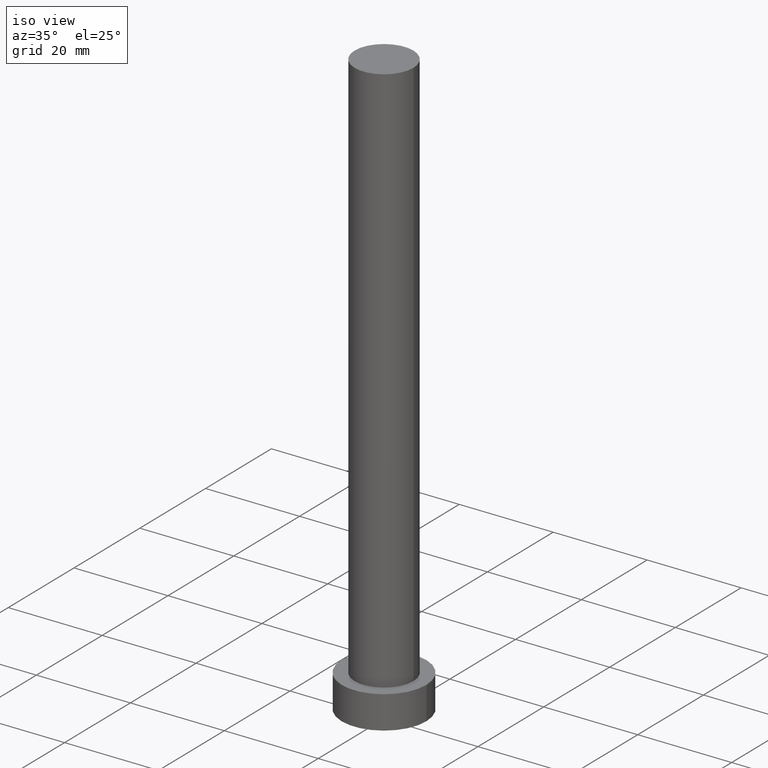
[diagram: clean part render]
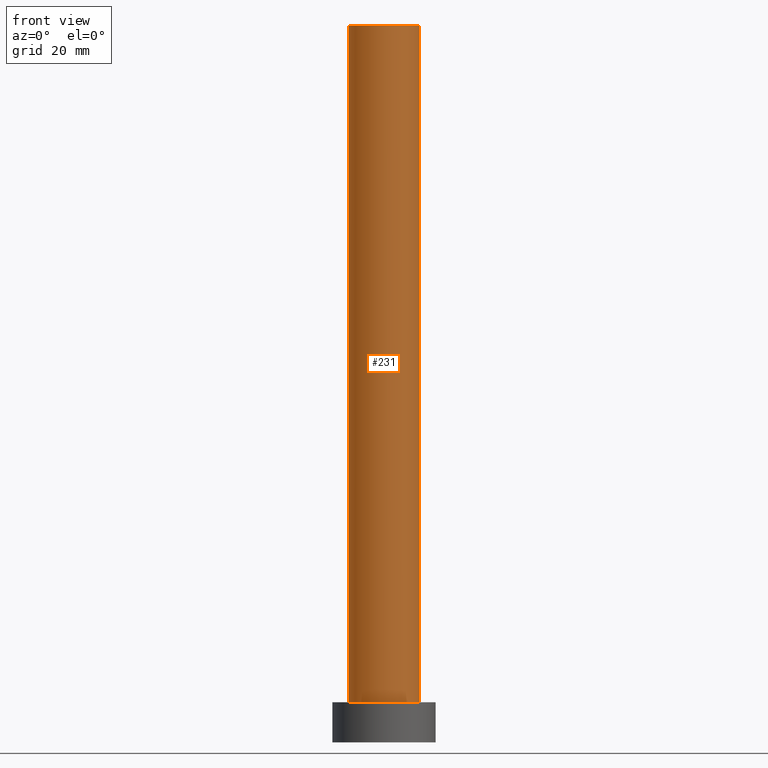
[diagram: tour spotlight — one face highlighted and labeled with its STEP entity id]
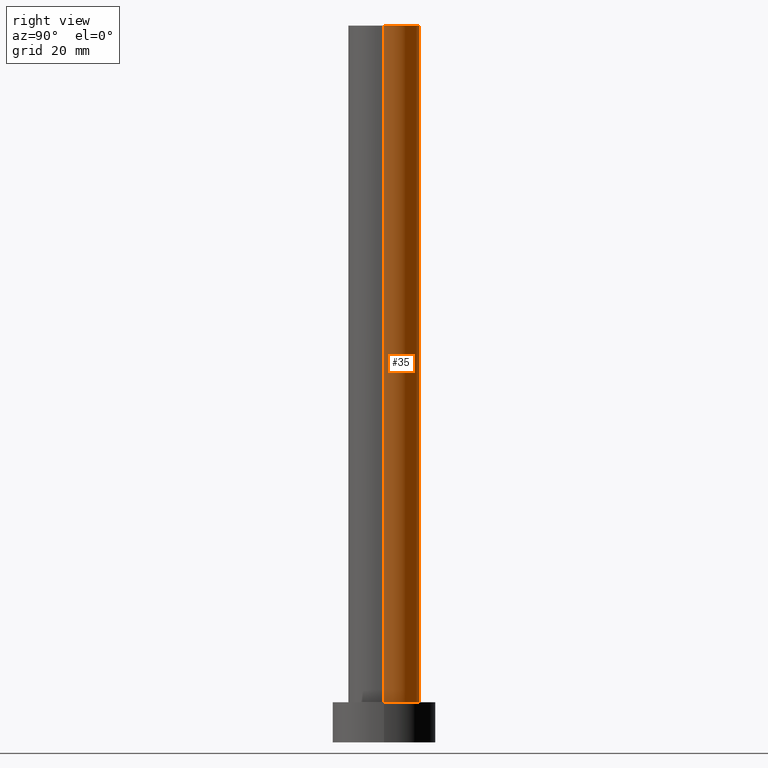
[diagram: tour spotlight — one face highlighted and labeled with its STEP entity id]
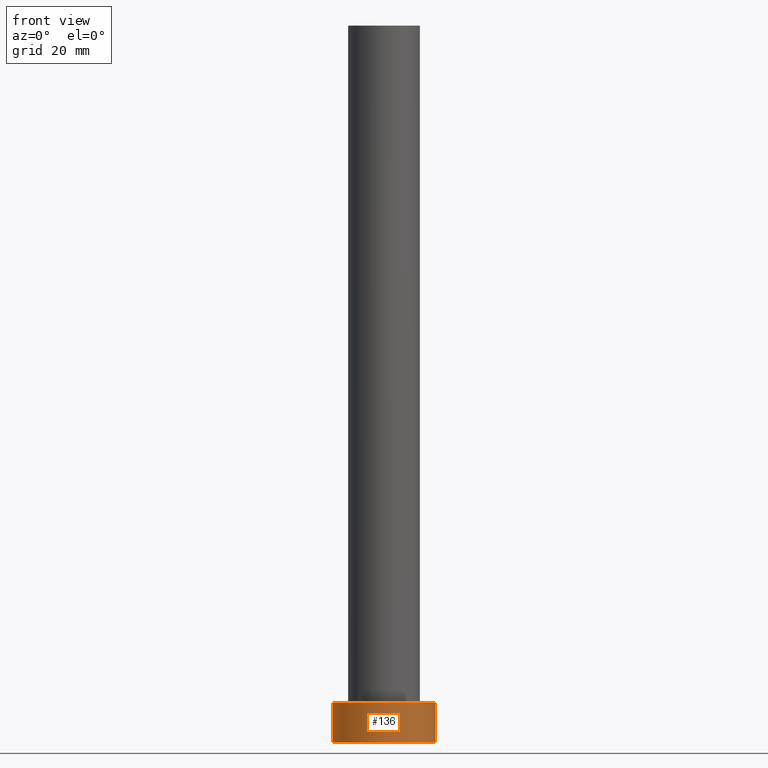
[diagram: tour spotlight — one face highlighted and labeled with its STEP entity id]
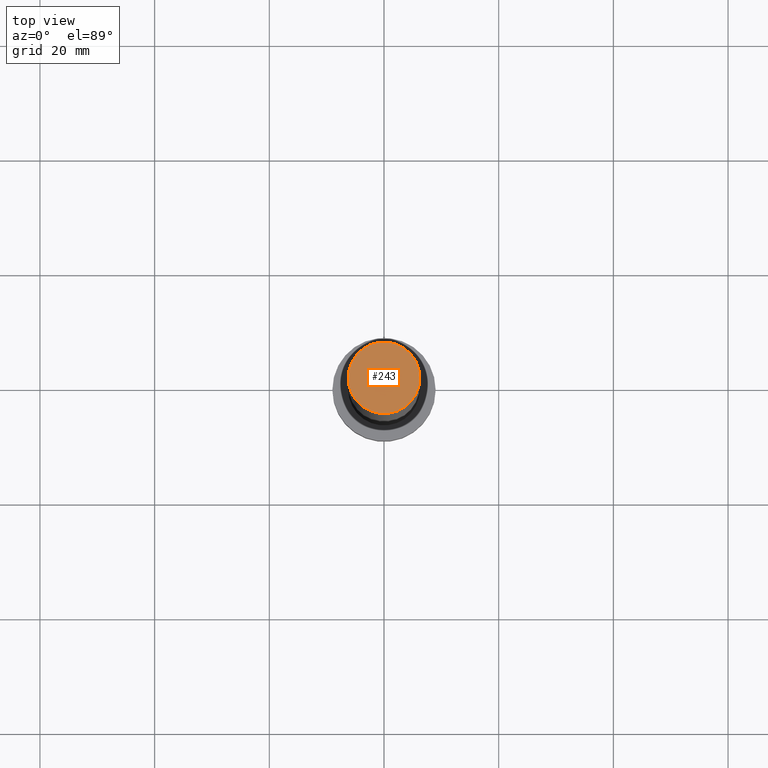
[diagram: tour spotlight — one face highlighted and labeled with its STEP entity id]
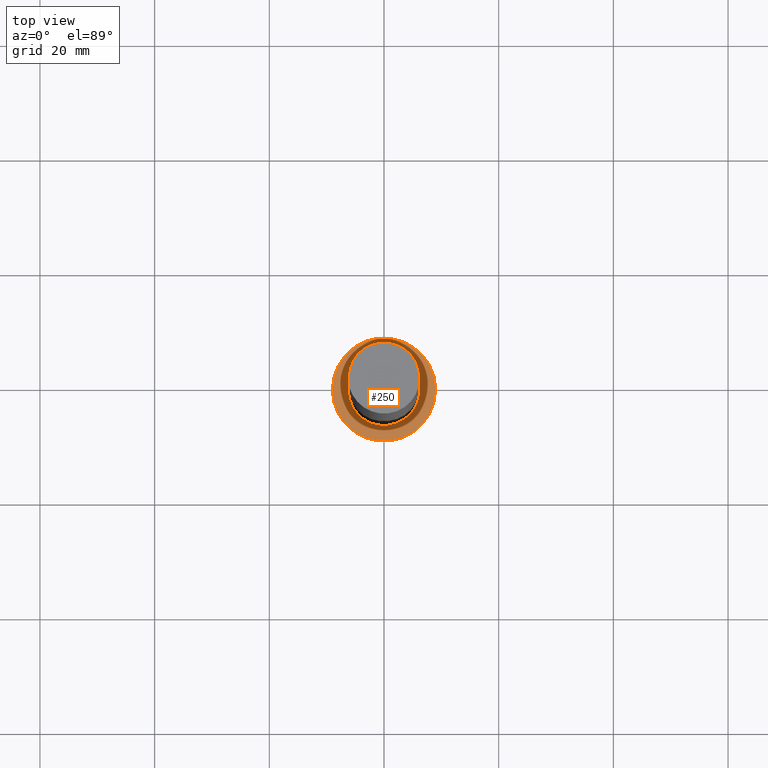
[diagram: tour spotlight — one face highlighted and labeled with its STEP entity id]
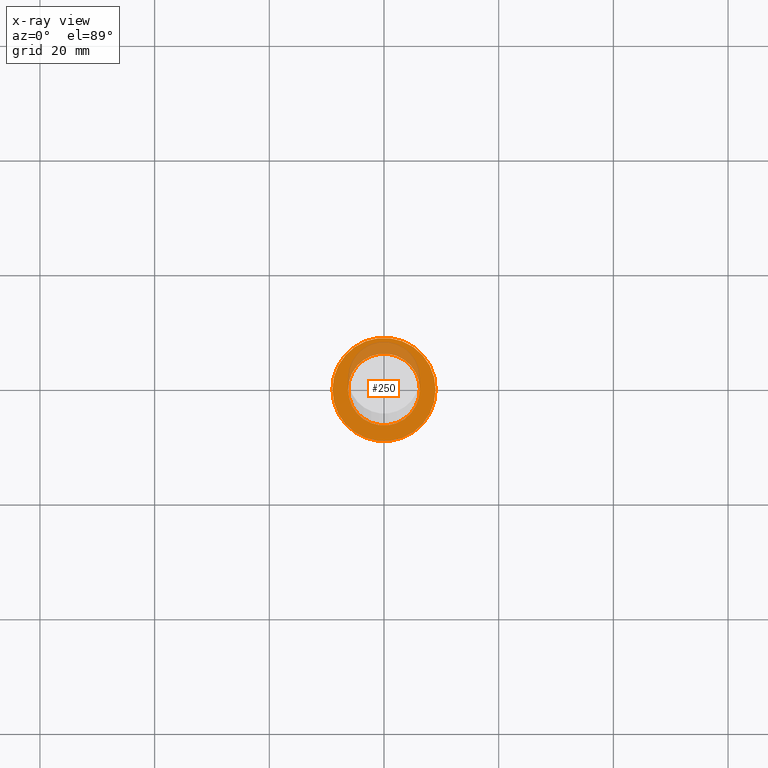
[diagram: x-ray of the same camera — body ghosted, this tour face saturated]
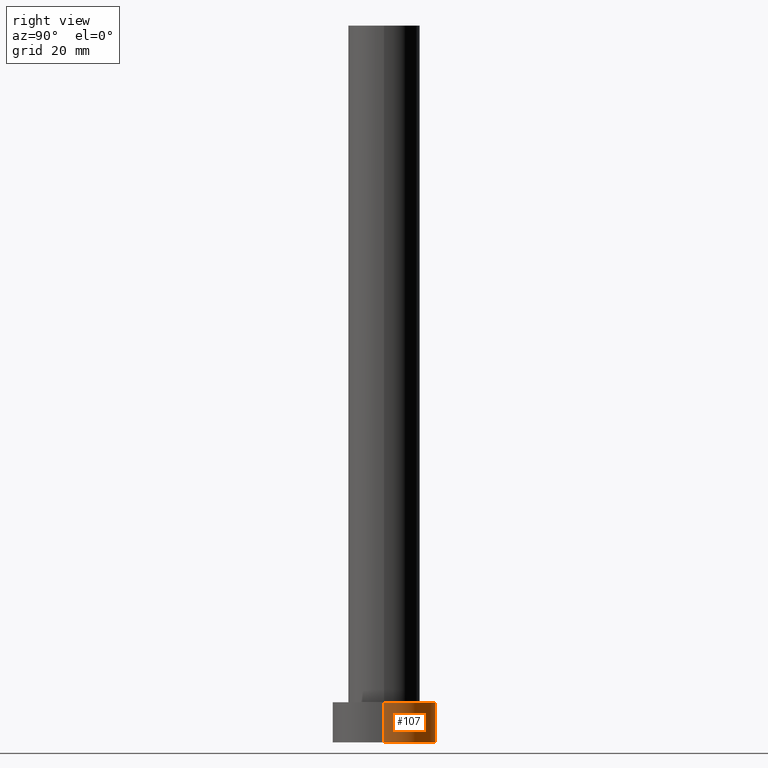
[diagram: tour spotlight — one face highlighted and labeled with its STEP entity id]
A machine part: a face-by-face anatomy tour. The part has 7 B-rep faces; the first image is the clean iso view, then the 6 largest visible faces are spotlighted one at a time (largest first), each with its STEP entity span.

Face 1 — front view, entity #231. In plain terms, the highlighted cylindrical surface (edge-blend (fillet) strip) has radius 6.25 mm, axis along (-0, -0, -1).
Definition (entity closure, byte-faithful):
#2 = CYLINDRICAL_SURFACE ( 'NONE', #68, 6.250000000000000000 ) ;
#3 = DIRECTION ( 'NONE',  ( -0.000000000000000000, -0.000000000000000000, -1.000000000000000000 ) ) ;
#7 = VERTEX_POINT ( 'NONE', #169 ) ;
#23 = VERTEX_POINT ( 'NONE', #27 ) ;
#27 = CARTESIAN_POINT ( 'NONE',  ( -6.250000000000000000, 0.000000000000000000, 7.000000000000000000 ) ) ;
#32 = LINE ( 'NONE', #189, #50 ) ;
#36 = DIRECTION ( 'NONE',  ( -1.000000000000000000, 0.000000000000000000, 0.000000000000000000 ) ) ;
#42 = EDGE_CURVE ( 'NONE', #7, #122, #32, .T. ) ;
#49 = AXIS2_PLACEMENT_3D ( 'NONE', #251, #190, #148 ) ;
#50 = VECTOR ( 'NONE', #89, 1000.000000000000000 ) ;
#52 = EDGE_CURVE ( 'NONE', #147, #7, #139, .T. ) ;
#54 = CARTESIAN_POINT ( 'NONE',  ( -6.250000000000000000, 0.000000000000000000, 125.0000000000000000 ) ) ;
#68 = AXIS2_PLACEMENT_3D ( 'NONE', #79, #3, #36 ) ;
#79 = CARTESIAN_POINT ( 'NONE',  ( 0.000000000000000000, 0.000000000000000000, 125.0000000000000000 ) ) ;
#82 = ORIENTED_EDGE ( 'NONE', *, *, #52, .F. ) ;
#87 = AXIS2_PLACEMENT_3D ( 'NONE', #191, #90, #236 ) ;
#89 = DIRECTION ( 'NONE',  ( -0.000000000000000000, -0.000000000000000000, -1.000000000000000000 ) ) ;
#90 = DIRECTION ( 'NONE',  ( 0.000000000000000000, 0.000000000000000000, 1.000000000000000000 ) ) ;
#94 = CIRCLE ( 'NONE', #49, 6.250000000000000000 ) ;
#109 = CARTESIAN_POINT ( 'NONE',  ( -6.250000000000000000, 0.000000000000000000, 125.0000000000000000 ) ) ;
#122 = VERTEX_POINT ( 'NONE', #152 ) ;
#123 = EDGE_CURVE ( 'NONE', #23, #122, #94, .T. ) ;
#134 = FACE_OUTER_BOUND ( 'NONE', #205, .T. ) ;
#139 = CIRCLE ( 'NONE', #87, 6.250000000000000000 ) ;
#147 = VERTEX_POINT ( 'NONE', #109 ) ;
#148 = DIRECTION ( 'NONE',  ( 1.000000000000000000, 0.000000000000000000, 0.000000000000000000 ) ) ;
#152 = CARTESIAN_POINT ( 'NONE',  ( 6.250000000000000000, 7.654042494670957606E-16, 7.000000000000000000 ) ) ;
#155 = EDGE_CURVE ( 'NONE', #147, #23, #216, .T. ) ;
#165 = ORIENTED_EDGE ( 'NONE', *, *, #123, .T. ) ;
#169 = CARTESIAN_POINT ( 'NONE',  ( 6.250000000000000000, 7.654042494670957606E-16, 125.0000000000000000 ) ) ;
#189 = CARTESIAN_POINT ( 'NONE',  ( 6.250000000000000000, 7.654042494670957606E-16, 125.0000000000000000 ) ) ;
#190 = DIRECTION ( 'NONE',  ( 0.000000000000000000, 0.000000000000000000, 1.000000000000000000 ) ) ;
#191 = CARTESIAN_POINT ( 'NONE',  ( 0.000000000000000000, 0.000000000000000000, 125.0000000000000000 ) ) ;
#193 = ORIENTED_EDGE ( 'NONE', *, *, #155, .T. ) ;
#194 = VECTOR ( 'NONE', #235, 1000.000000000000000 ) ;
#205 = EDGE_LOOP ( 'NONE', ( #245, #82, #193, #165 ) ) ;
#216 = LINE ( 'NONE', #54, #194 ) ;
#231 = ADVANCED_FACE ( 'NONE', ( #134 ), #2, .T. ) ;
#235 = DIRECTION ( 'NONE',  ( -0.000000000000000000, -0.000000000000000000, -1.000000000000000000 ) ) ;
#236 = DIRECTION ( 'NONE',  ( 1.000000000000000000, 0.000000000000000000, 0.000000000000000000 ) ) ;
#245 = ORIENTED_EDGE ( 'NONE', *, *, #42, .F. ) ;
#251 = CARTESIAN_POINT ( 'NONE',  ( 0.000000000000000000, 0.000000000000000000, 7.000000000000000000 ) ) ;

Face 2 — right view, entity #35. In plain terms, the highlighted cylindrical surface (edge-blend (fillet) strip) has radius 6.25 mm, axis along (-0, -0, -1).
Definition (entity closure, byte-faithful):
#4 = ORIENTED_EDGE ( 'NONE', *, *, #132, .F. ) ;
#7 = VERTEX_POINT ( 'NONE', #169 ) ;
#9 = ORIENTED_EDGE ( 'NONE', *, *, #155, .F. ) ;
#14 = CIRCLE ( 'NONE', #24, 6.250000000000000000 ) ;
#23 = VERTEX_POINT ( 'NONE', #27 ) ;
#24 = AXIS2_PLACEMENT_3D ( 'NONE', #110, #92, #74 ) ;
#27 = CARTESIAN_POINT ( 'NONE',  ( -6.250000000000000000, 0.000000000000000000, 7.000000000000000000 ) ) ;
#32 = LINE ( 'NONE', #189, #50 ) ;
#35 = ADVANCED_FACE ( 'NONE', ( #105 ), #149, .T. ) ;
#38 = AXIS2_PLACEMENT_3D ( 'NONE', #171, #249, #215 ) ;
#42 = EDGE_CURVE ( 'NONE', #7, #122, #32, .T. ) ;
#50 = VECTOR ( 'NONE', #89, 1000.000000000000000 ) ;
#54 = CARTESIAN_POINT ( 'NONE',  ( -6.250000000000000000, 0.000000000000000000, 125.0000000000000000 ) ) ;
#74 = DIRECTION ( 'NONE',  ( 1.000000000000000000, 0.000000000000000000, 0.000000000000000000 ) ) ;
#89 = DIRECTION ( 'NONE',  ( -0.000000000000000000, -0.000000000000000000, -1.000000000000000000 ) ) ;
#92 = DIRECTION ( 'NONE',  ( 0.000000000000000000, 0.000000000000000000, 1.000000000000000000 ) ) ;
#99 = EDGE_LOOP ( 'NONE', ( #4, #124, #146, #9 ) ) ;
#105 = FACE_OUTER_BOUND ( 'NONE', #99, .T. ) ;
#109 = CARTESIAN_POINT ( 'NONE',  ( -6.250000000000000000, 0.000000000000000000, 125.0000000000000000 ) ) ;
#110 = CARTESIAN_POINT ( 'NONE',  ( 0.000000000000000000, 0.000000000000000000, 125.0000000000000000 ) ) ;
#122 = VERTEX_POINT ( 'NONE', #152 ) ;
#124 = ORIENTED_EDGE ( 'NONE', *, *, #42, .T. ) ;
#130 = DIRECTION ( 'NONE',  ( 1.000000000000000000, 0.000000000000000000, 0.000000000000000000 ) ) ;
#132 = EDGE_CURVE ( 'NONE', #7, #147, #14, .T. ) ;
#146 = ORIENTED_EDGE ( 'NONE', *, *, #151, .T. ) ;
#147 = VERTEX_POINT ( 'NONE', #109 ) ;
#149 = CYLINDRICAL_SURFACE ( 'NONE', #38, 6.250000000000000000 ) ;
#151 = EDGE_CURVE ( 'NONE', #122, #23, #246, .T. ) ;
#152 = CARTESIAN_POINT ( 'NONE',  ( 6.250000000000000000, 7.654042494670957606E-16, 7.000000000000000000 ) ) ;
#155 = EDGE_CURVE ( 'NONE', #147, #23, #216, .T. ) ;
#169 = CARTESIAN_POINT ( 'NONE',  ( 6.250000000000000000, 7.654042494670957606E-16, 125.0000000000000000 ) ) ;
#171 = CARTESIAN_POINT ( 'NONE',  ( 0.000000000000000000, 0.000000000000000000, 125.0000000000000000 ) ) ;
#172 = AXIS2_PLACEMENT_3D ( 'NONE', #252, #232, #130 ) ;
#189 = CARTESIAN_POINT ( 'NONE',  ( 6.250000000000000000, 7.654042494670957606E-16, 125.0000000000000000 ) ) ;
#194 = VECTOR ( 'NONE', #235, 1000.000000000000000 ) ;
#215 = DIRECTION ( 'NONE',  ( -1.000000000000000000, 0.000000000000000000, 0.000000000000000000 ) ) ;
#216 = LINE ( 'NONE', #54, #194 ) ;
#232 = DIRECTION ( 'NONE',  ( 0.000000000000000000, 0.000000000000000000, 1.000000000000000000 ) ) ;
#235 = DIRECTION ( 'NONE',  ( -0.000000000000000000, -0.000000000000000000, -1.000000000000000000 ) ) ;
#246 = CIRCLE ( 'NONE', #172, 6.250000000000000000 ) ;
#249 = DIRECTION ( 'NONE',  ( -0.000000000000000000, -0.000000000000000000, -1.000000000000000000 ) ) ;
#252 = CARTESIAN_POINT ( 'NONE',  ( 0.000000000000000000, 0.000000000000000000, 7.000000000000000000 ) ) ;

Face 3 — front view, entity #136. In plain terms, the highlighted cylindrical surface (partial cylindrical patch) has radius 9 mm, axis along (-0, -0, -1).
Definition (entity closure, byte-faithful):
#5 = EDGE_LOOP ( 'NONE', ( #204, #188, #47, #203 ) ) ;
#12 = FACE_OUTER_BOUND ( 'NONE', #5, .T. ) ;
#28 = AXIS2_PLACEMENT_3D ( 'NONE', #173, #254, #234 ) ;
#29 = CARTESIAN_POINT ( 'NONE',  ( 9.000000000000000000, 1.102182119232617714E-15, 7.000000000000000000 ) ) ;
#30 = DIRECTION ( 'NONE',  ( -0.000000000000000000, -0.000000000000000000, -1.000000000000000000 ) ) ;
#46 = VERTEX_POINT ( 'NONE', #73 ) ;
#47 = ORIENTED_EDGE ( 'NONE', *, *, #202, .T. ) ;
#48 = DIRECTION ( 'NONE',  ( -0.000000000000000000, -0.000000000000000000, -1.000000000000000000 ) ) ;
#51 = DIRECTION ( 'NONE',  ( 1.000000000000000000, 0.000000000000000000, 0.000000000000000000 ) ) ;
#53 = LINE ( 'NONE', #75, #125 ) ;
#62 = EDGE_CURVE ( 'NONE', #184, #163, #206, .T. ) ;
#71 = CARTESIAN_POINT ( 'NONE',  ( 9.000000000000000000, 1.102182119232617714E-15, 0.000000000000000000 ) ) ;
#72 = CIRCLE ( 'NONE', #200, 9.000000000000000000 ) ;
#73 = CARTESIAN_POINT ( 'NONE',  ( 9.000000000000000000, 1.102182119232617714E-15, 7.000000000000000000 ) ) ;
#75 = CARTESIAN_POINT ( 'NONE',  ( -9.000000000000000000, 0.000000000000000000, 7.000000000000000000 ) ) ;
#98 = EDGE_CURVE ( 'NONE', #46, #163, #230, .T. ) ;
#108 = DIRECTION ( 'NONE',  ( -1.000000000000000000, 0.000000000000000000, 0.000000000000000000 ) ) ;
#115 = DIRECTION ( 'NONE',  ( 0.000000000000000000, 0.000000000000000000, 1.000000000000000000 ) ) ;
#125 = VECTOR ( 'NONE', #30, 1000.000000000000000 ) ;
#131 = CARTESIAN_POINT ( 'NONE',  ( 0.000000000000000000, 0.000000000000000000, 7.000000000000000000 ) ) ;
#136 = ADVANCED_FACE ( 'NONE', ( #12 ), #153, .T. ) ;
#153 = CYLINDRICAL_SURFACE ( 'NONE', #180, 9.000000000000000000 ) ;
#163 = VERTEX_POINT ( 'NONE', #71 ) ;
#173 = CARTESIAN_POINT ( 'NONE',  ( 0.000000000000000000, 0.000000000000000000, 0.000000000000000000 ) ) ;
#180 = AXIS2_PLACEMENT_3D ( 'NONE', #210, #48, #108 ) ;
#183 = EDGE_CURVE ( 'NONE', #247, #46, #72, .T. ) ;
#184 = VERTEX_POINT ( 'NONE', #196 ) ;
#188 = ORIENTED_EDGE ( 'NONE', *, *, #183, .F. ) ;
#196 = CARTESIAN_POINT ( 'NONE',  ( -9.000000000000000000, 0.000000000000000000, 0.000000000000000000 ) ) ;
#200 = AXIS2_PLACEMENT_3D ( 'NONE', #131, #115, #51 ) ;
#202 = EDGE_CURVE ( 'NONE', #247, #184, #53, .T. ) ;
#203 = ORIENTED_EDGE ( 'NONE', *, *, #62, .T. ) ;
#204 = ORIENTED_EDGE ( 'NONE', *, *, #98, .F. ) ;
#206 = CIRCLE ( 'NONE', #28, 9.000000000000000000 ) ;
#210 = CARTESIAN_POINT ( 'NONE',  ( 0.000000000000000000, 0.000000000000000000, 7.000000000000000000 ) ) ;
#214 = DIRECTION ( 'NONE',  ( -0.000000000000000000, -0.000000000000000000, -1.000000000000000000 ) ) ;
#217 = CARTESIAN_POINT ( 'NONE',  ( -9.000000000000000000, 0.000000000000000000, 7.000000000000000000 ) ) ;
#220 = VECTOR ( 'NONE', #214, 1000.000000000000000 ) ;
#230 = LINE ( 'NONE', #29, #220 ) ;
#234 = DIRECTION ( 'NONE',  ( 1.000000000000000000, 0.000000000000000000, 0.000000000000000000 ) ) ;
#247 = VERTEX_POINT ( 'NONE', #217 ) ;
#254 = DIRECTION ( 'NONE',  ( 0.000000000000000000, 0.000000000000000000, 1.000000000000000000 ) ) ;

Face 4 — top view, entity #243. In plain terms, the highlighted planar face has unit normal (0, 0, 1).
Definition (entity closure, byte-faithful):
#7 = VERTEX_POINT ( 'NONE', #169 ) ;
#14 = CIRCLE ( 'NONE', #24, 6.250000000000000000 ) ;
#24 = AXIS2_PLACEMENT_3D ( 'NONE', #110, #92, #74 ) ;
#41 = AXIS2_PLACEMENT_3D ( 'NONE', #199, #140, #80 ) ;
#52 = EDGE_CURVE ( 'NONE', #147, #7, #139, .T. ) ;
#74 = DIRECTION ( 'NONE',  ( 1.000000000000000000, 0.000000000000000000, 0.000000000000000000 ) ) ;
#80 = DIRECTION ( 'NONE',  ( 1.000000000000000000, 0.000000000000000000, -0.000000000000000000 ) ) ;
#84 = ORIENTED_EDGE ( 'NONE', *, *, #132, .T. ) ;
#86 = EDGE_LOOP ( 'NONE', ( #121, #84 ) ) ;
#87 = AXIS2_PLACEMENT_3D ( 'NONE', #191, #90, #236 ) ;
#90 = DIRECTION ( 'NONE',  ( 0.000000000000000000, 0.000000000000000000, 1.000000000000000000 ) ) ;
#92 = DIRECTION ( 'NONE',  ( 0.000000000000000000, 0.000000000000000000, 1.000000000000000000 ) ) ;
#109 = CARTESIAN_POINT ( 'NONE',  ( -6.250000000000000000, 0.000000000000000000, 125.0000000000000000 ) ) ;
#110 = CARTESIAN_POINT ( 'NONE',  ( 0.000000000000000000, 0.000000000000000000, 125.0000000000000000 ) ) ;
#121 = ORIENTED_EDGE ( 'NONE', *, *, #52, .T. ) ;
#132 = EDGE_CURVE ( 'NONE', #7, #147, #14, .T. ) ;
#139 = CIRCLE ( 'NONE', #87, 6.250000000000000000 ) ;
#140 = DIRECTION ( 'NONE',  ( 0.000000000000000000, 0.000000000000000000, 1.000000000000000000 ) ) ;
#147 = VERTEX_POINT ( 'NONE', #109 ) ;
#169 = CARTESIAN_POINT ( 'NONE',  ( 6.250000000000000000, 7.654042494670957606E-16, 125.0000000000000000 ) ) ;
#179 = PLANE ( 'NONE',  #41 ) ;
#191 = CARTESIAN_POINT ( 'NONE',  ( 0.000000000000000000, 0.000000000000000000, 125.0000000000000000 ) ) ;
#197 = FACE_OUTER_BOUND ( 'NONE', #86, .T. ) ;
#199 = CARTESIAN_POINT ( 'NONE',  ( 0.000000000000000000, 0.000000000000000000, 125.0000000000000000 ) ) ;
#236 = DIRECTION ( 'NONE',  ( 1.000000000000000000, 0.000000000000000000, 0.000000000000000000 ) ) ;
#243 = ADVANCED_FACE ( 'NONE', ( #197 ), #179, .T. ) ;

Face 5 — top view, entity #250. An x-ray twin of the same camera follows (body ghosted, this face saturated) — the face is partly hidden behind the body. In plain terms, the highlighted planar face has unit normal (0, 0, 1).
Definition (entity closure, byte-faithful):
#13 = DIRECTION ( 'NONE',  ( 1.000000000000000000, 0.000000000000000000, 0.000000000000000000 ) ) ;
#21 = PLANE ( 'NONE',  #133 ) ;
#23 = VERTEX_POINT ( 'NONE', #27 ) ;
#26 = EDGE_LOOP ( 'NONE', ( #145, #44 ) ) ;
#27 = CARTESIAN_POINT ( 'NONE',  ( -6.250000000000000000, 0.000000000000000000, 7.000000000000000000 ) ) ;
#34 = FACE_BOUND ( 'NONE', #225, .T. ) ;
#44 = ORIENTED_EDGE ( 'NONE', *, *, #111, .T. ) ;
#46 = VERTEX_POINT ( 'NONE', #73 ) ;
#49 = AXIS2_PLACEMENT_3D ( 'NONE', #251, #190, #148 ) ;
#51 = DIRECTION ( 'NONE',  ( 1.000000000000000000, 0.000000000000000000, 0.000000000000000000 ) ) ;
#60 = FACE_OUTER_BOUND ( 'NONE', #26, .T. ) ;
#63 = AXIS2_PLACEMENT_3D ( 'NONE', #127, #174, #13 ) ;
#72 = CIRCLE ( 'NONE', #200, 9.000000000000000000 ) ;
#73 = CARTESIAN_POINT ( 'NONE',  ( 9.000000000000000000, 1.102182119232617714E-15, 7.000000000000000000 ) ) ;
#91 = CIRCLE ( 'NONE', #63, 9.000000000000000000 ) ;
#94 = CIRCLE ( 'NONE', #49, 6.250000000000000000 ) ;
#102 = ORIENTED_EDGE ( 'NONE', *, *, #151, .F. ) ;
#111 = EDGE_CURVE ( 'NONE', #46, #247, #91, .T. ) ;
#115 = DIRECTION ( 'NONE',  ( 0.000000000000000000, 0.000000000000000000, 1.000000000000000000 ) ) ;
#116 = CARTESIAN_POINT ( 'NONE',  ( 0.000000000000000000, 0.000000000000000000, 7.000000000000000000 ) ) ;
#118 = DIRECTION ( 'NONE',  ( 1.000000000000000000, 0.000000000000000000, -0.000000000000000000 ) ) ;
#122 = VERTEX_POINT ( 'NONE', #152 ) ;
#123 = EDGE_CURVE ( 'NONE', #23, #122, #94, .T. ) ;
#127 = CARTESIAN_POINT ( 'NONE',  ( 0.000000000000000000, 0.000000000000000000, 7.000000000000000000 ) ) ;
#130 = DIRECTION ( 'NONE',  ( 1.000000000000000000, 0.000000000000000000, 0.000000000000000000 ) ) ;
#131 = CARTESIAN_POINT ( 'NONE',  ( 0.000000000000000000, 0.000000000000000000, 7.000000000000000000 ) ) ;
#133 = AXIS2_PLACEMENT_3D ( 'NONE', #116, #240, #118 ) ;
#145 = ORIENTED_EDGE ( 'NONE', *, *, #183, .T. ) ;
#148 = DIRECTION ( 'NONE',  ( 1.000000000000000000, 0.000000000000000000, 0.000000000000000000 ) ) ;
#151 = EDGE_CURVE ( 'NONE', #122, #23, #246, .T. ) ;
#152 = CARTESIAN_POINT ( 'NONE',  ( 6.250000000000000000, 7.654042494670957606E-16, 7.000000000000000000 ) ) ;
#172 = AXIS2_PLACEMENT_3D ( 'NONE', #252, #232, #130 ) ;
#174 = DIRECTION ( 'NONE',  ( 0.000000000000000000, 0.000000000000000000, 1.000000000000000000 ) ) ;
#183 = EDGE_CURVE ( 'NONE', #247, #46, #72, .T. ) ;
#186 = ORIENTED_EDGE ( 'NONE', *, *, #123, .F. ) ;
#190 = DIRECTION ( 'NONE',  ( 0.000000000000000000, 0.000000000000000000, 1.000000000000000000 ) ) ;
#200 = AXIS2_PLACEMENT_3D ( 'NONE', #131, #115, #51 ) ;
#217 = CARTESIAN_POINT ( 'NONE',  ( -9.000000000000000000, 0.000000000000000000, 7.000000000000000000 ) ) ;
#225 = EDGE_LOOP ( 'NONE', ( #186, #102 ) ) ;
#232 = DIRECTION ( 'NONE',  ( 0.000000000000000000, 0.000000000000000000, 1.000000000000000000 ) ) ;
#240 = DIRECTION ( 'NONE',  ( 0.000000000000000000, 0.000000000000000000, 1.000000000000000000 ) ) ;
#246 = CIRCLE ( 'NONE', #172, 6.250000000000000000 ) ;
#247 = VERTEX_POINT ( 'NONE', #217 ) ;
#250 = ADVANCED_FACE ( 'NONE', ( #34, #60 ), #21, .T. ) ;
#251 = CARTESIAN_POINT ( 'NONE',  ( 0.000000000000000000, 0.000000000000000000, 7.000000000000000000 ) ) ;
#252 = CARTESIAN_POINT ( 'NONE',  ( 0.000000000000000000, 0.000000000000000000, 7.000000000000000000 ) ) ;

Face 6 — right view, entity #107. In plain terms, the highlighted cylindrical surface (partial cylindrical patch) has radius 9 mm, axis along (-0, -0, -1).
Definition (entity closure, byte-faithful):
#6 = ORIENTED_EDGE ( 'NONE', *, *, #98, .T. ) ;
#13 = DIRECTION ( 'NONE',  ( 1.000000000000000000, 0.000000000000000000, 0.000000000000000000 ) ) ;
#16 = CARTESIAN_POINT ( 'NONE',  ( 0.000000000000000000, 0.000000000000000000, 0.000000000000000000 ) ) ;
#29 = CARTESIAN_POINT ( 'NONE',  ( 9.000000000000000000, 1.102182119232617714E-15, 7.000000000000000000 ) ) ;
#30 = DIRECTION ( 'NONE',  ( -0.000000000000000000, -0.000000000000000000, -1.000000000000000000 ) ) ;
#33 = AXIS2_PLACEMENT_3D ( 'NONE', #88, #170, #70 ) ;
#46 = VERTEX_POINT ( 'NONE', #73 ) ;
#53 = LINE ( 'NONE', #75, #125 ) ;
#63 = AXIS2_PLACEMENT_3D ( 'NONE', #127, #174, #13 ) ;
#70 = DIRECTION ( 'NONE',  ( -1.000000000000000000, 0.000000000000000000, 0.000000000000000000 ) ) ;
#71 = CARTESIAN_POINT ( 'NONE',  ( 9.000000000000000000, 1.102182119232617714E-15, 0.000000000000000000 ) ) ;
#73 = CARTESIAN_POINT ( 'NONE',  ( 9.000000000000000000, 1.102182119232617714E-15, 7.000000000000000000 ) ) ;
#75 = CARTESIAN_POINT ( 'NONE',  ( -9.000000000000000000, 0.000000000000000000, 7.000000000000000000 ) ) ;
#88 = CARTESIAN_POINT ( 'NONE',  ( 0.000000000000000000, 0.000000000000000000, 7.000000000000000000 ) ) ;
#91 = CIRCLE ( 'NONE', #63, 9.000000000000000000 ) ;
#93 = FACE_OUTER_BOUND ( 'NONE', #128, .T. ) ;
#98 = EDGE_CURVE ( 'NONE', #46, #163, #230, .T. ) ;
#104 = ORIENTED_EDGE ( 'NONE', *, *, #207, .T. ) ;
#107 = ADVANCED_FACE ( 'NONE', ( #93 ), #129, .T. ) ;
#111 = EDGE_CURVE ( 'NONE', #46, #247, #91, .T. ) ;
#113 = AXIS2_PLACEMENT_3D ( 'NONE', #16, #238, #141 ) ;
#125 = VECTOR ( 'NONE', #30, 1000.000000000000000 ) ;
#127 = CARTESIAN_POINT ( 'NONE',  ( 0.000000000000000000, 0.000000000000000000, 7.000000000000000000 ) ) ;
#128 = EDGE_LOOP ( 'NONE', ( #166, #6, #104, #229 ) ) ;
#129 = CYLINDRICAL_SURFACE ( 'NONE', #33, 9.000000000000000000 ) ;
#141 = DIRECTION ( 'NONE',  ( 1.000000000000000000, 0.000000000000000000, 0.000000000000000000 ) ) ;
#163 = VERTEX_POINT ( 'NONE', #71 ) ;
#166 = ORIENTED_EDGE ( 'NONE', *, *, #111, .F. ) ;
#170 = DIRECTION ( 'NONE',  ( -0.000000000000000000, -0.000000000000000000, -1.000000000000000000 ) ) ;
#174 = DIRECTION ( 'NONE',  ( 0.000000000000000000, 0.000000000000000000, 1.000000000000000000 ) ) ;
#184 = VERTEX_POINT ( 'NONE', #196 ) ;
#196 = CARTESIAN_POINT ( 'NONE',  ( -9.000000000000000000, 0.000000000000000000, 0.000000000000000000 ) ) ;
#202 = EDGE_CURVE ( 'NONE', #247, #184, #53, .T. ) ;
#207 = EDGE_CURVE ( 'NONE', #163, #184, #227, .T. ) ;
#214 = DIRECTION ( 'NONE',  ( -0.000000000000000000, -0.000000000000000000, -1.000000000000000000 ) ) ;
#217 = CARTESIAN_POINT ( 'NONE',  ( -9.000000000000000000, 0.000000000000000000, 7.000000000000000000 ) ) ;
#220 = VECTOR ( 'NONE', #214, 1000.000000000000000 ) ;
#227 = CIRCLE ( 'NONE', #113, 9.000000000000000000 ) ;
#229 = ORIENTED_EDGE ( 'NONE', *, *, #202, .F. ) ;
#230 = LINE ( 'NONE', #29, #220 ) ;
#238 = DIRECTION ( 'NONE',  ( 0.000000000000000000, 0.000000000000000000, 1.000000000000000000 ) ) ;
#247 = VERTEX_POINT ( 'NONE', #217 ) ;